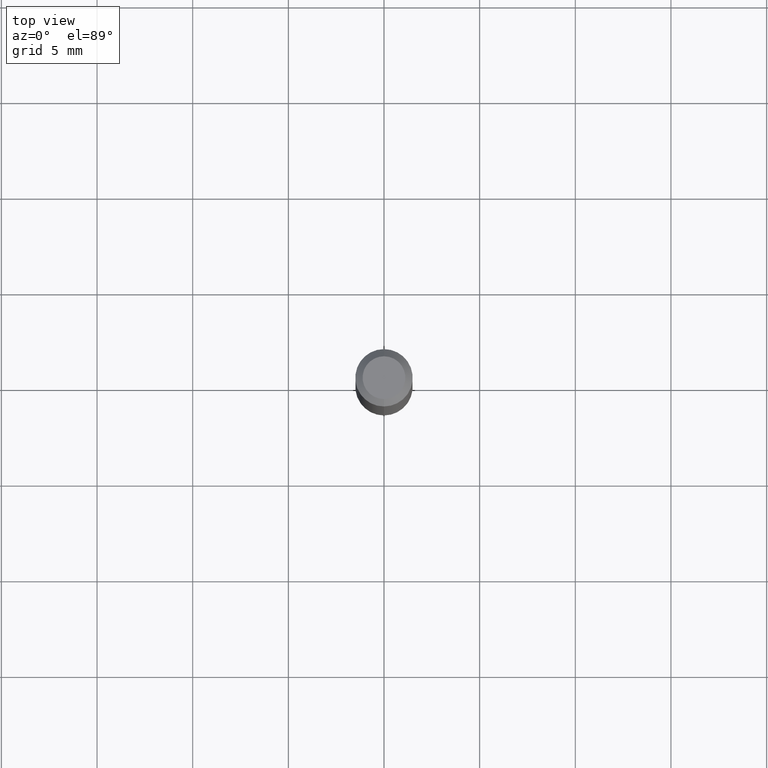
[diagram: clean part render]
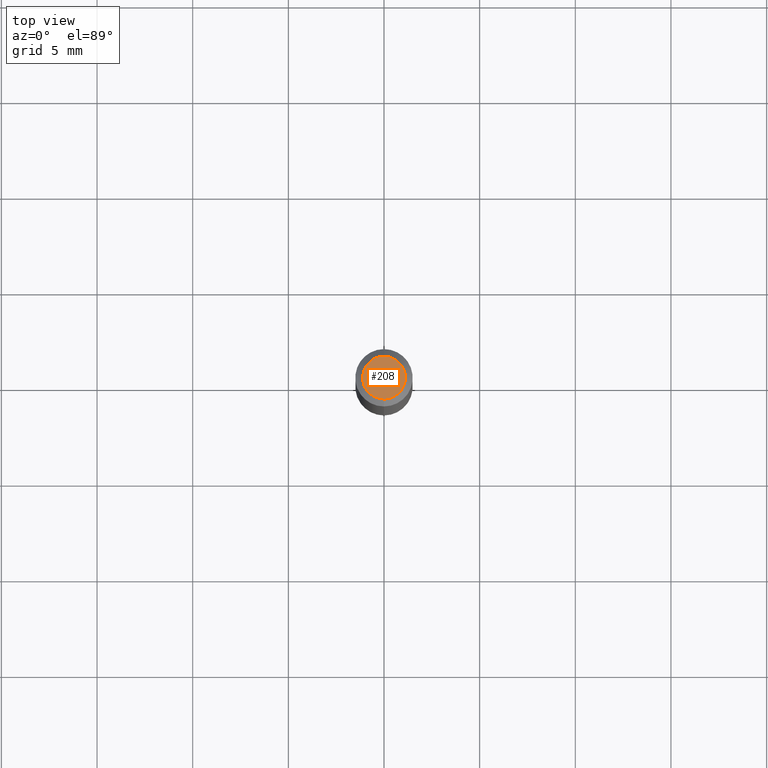
[diagram: same view with one face highlighted and labeled with its STEP entity id]
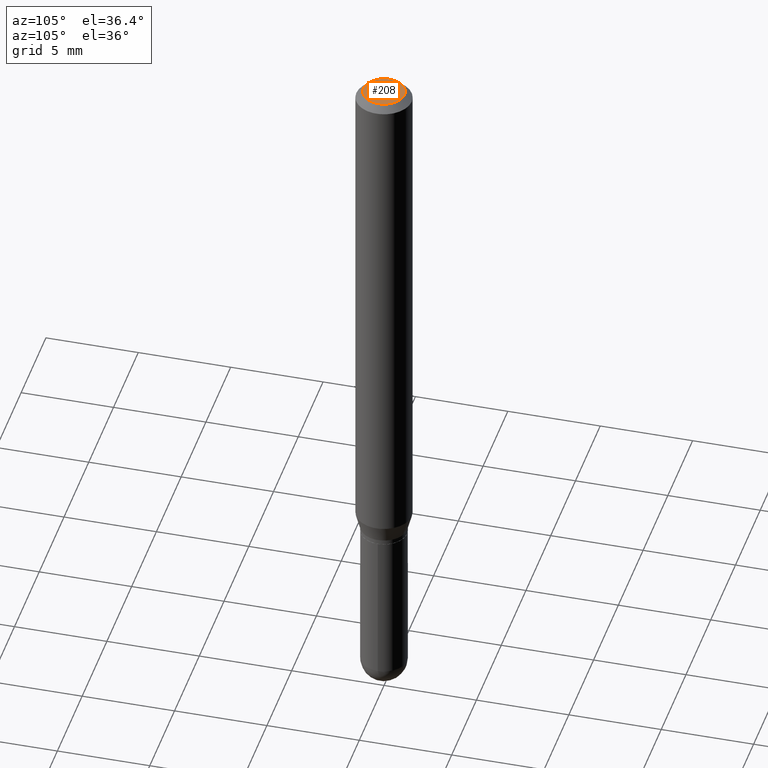
[diagram: same view with one face highlighted and labeled with its STEP entity id]
A machine part, top view. The second image highlights one B-rep face of the part: STEP entity #208.
A second angle (auxiliary view) of the same face is appended — the face is thin or edge-on in the first view.
In plain terms, the highlighted planar face has unit normal (0, -0, -1).
Its self-contained STEP definition (entity closure, byte-faithful):
#24 = DIRECTION ( 'NONE',  ( 6.982962677686265922E-15, 1.000000000000000000, -3.491378085890391934E-15 ) ) ;
#35 = DIRECTION ( 'NONE',  ( -2.445540907336680445E-29, 3.491378085890391934E-15, 1.000000000000000000 ) ) ;
#37 = VERTEX_POINT ( 'NONE', #487 ) ;
#51 = AXIS2_PLACEMENT_3D ( 'NONE', #460, #461, #265 ) ;
#66 = FACE_OUTER_BOUND ( 'NONE', #161, .T. ) ;
#82 = ORIENTED_EDGE ( 'NONE', *, *, #156, .T. ) ;
#89 = AXIS2_PLACEMENT_3D ( 'NONE', #498, #388, #24 ) ;
#103 = VERTEX_POINT ( 'NONE', #325 ) ;
#112 = CARTESIAN_POINT ( 'NONE',  ( 1.133656262477719304E-44, -1.618465109241457834E-30, -4.635605395422842505E-16 ) ) ;
#119 = ORIENTED_EDGE ( 'NONE', *, *, #275, .T. ) ;
#156 = EDGE_CURVE ( 'NONE', #37, #103, #375, .T. ) ;
#161 = EDGE_LOOP ( 'NONE', ( #119, #82 ) ) ;
#208 = ADVANCED_FACE ( 'NONE', ( #66 ), #240, .F. ) ;
#240 = PLANE ( 'NONE',  #89 ) ;
#251 = CIRCLE ( 'NONE', #51, 0.04405000000000000582 ) ;
#265 = DIRECTION ( 'NONE',  ( -6.982962677686265133E-15, -1.000000000000000000, 3.491378085890391539E-15 ) ) ;
#275 = EDGE_CURVE ( 'NONE', #103, #37, #251, .T. ) ;
#325 = CARTESIAN_POINT ( 'NONE',  ( 3.599717260347272986E-16, 0.04405000000000000582, -6.173557442257560111E-16 ) ) ;
#375 = CIRCLE ( 'NONE', #459, 0.04405000000000000582 ) ;
#388 = DIRECTION ( 'NONE',  ( 2.445540907336680165E-29, -3.491378085890391934E-15, -1.000000000000000000 ) ) ;
#390 = DIRECTION ( 'NONE',  ( -6.982962677686265133E-15, -1.000000000000000000, 3.491378085890391539E-15 ) ) ;
#459 = AXIS2_PLACEMENT_3D ( 'NONE', #112, #35, #390 ) ;
#460 = CARTESIAN_POINT ( 'NONE',  ( 1.133656262477719304E-44, -1.618465109241457834E-30, -4.635605395422842505E-16 ) ) ;
#461 = DIRECTION ( 'NONE',  ( -2.445540907336680445E-29, 3.491378085890391934E-15, 1.000000000000000000 ) ) ;
#487 = CARTESIAN_POINT ( 'NONE',  ( -3.536586717851222711E-16, -0.04405000000000000582, -3.097653348588125391E-16 ) ) ;
#498 = CARTESIAN_POINT ( 'NONE',  ( 3.075995059520800222E-16, 0.04405000000000000582, -3.855754744546139352E-16 ) ) ;